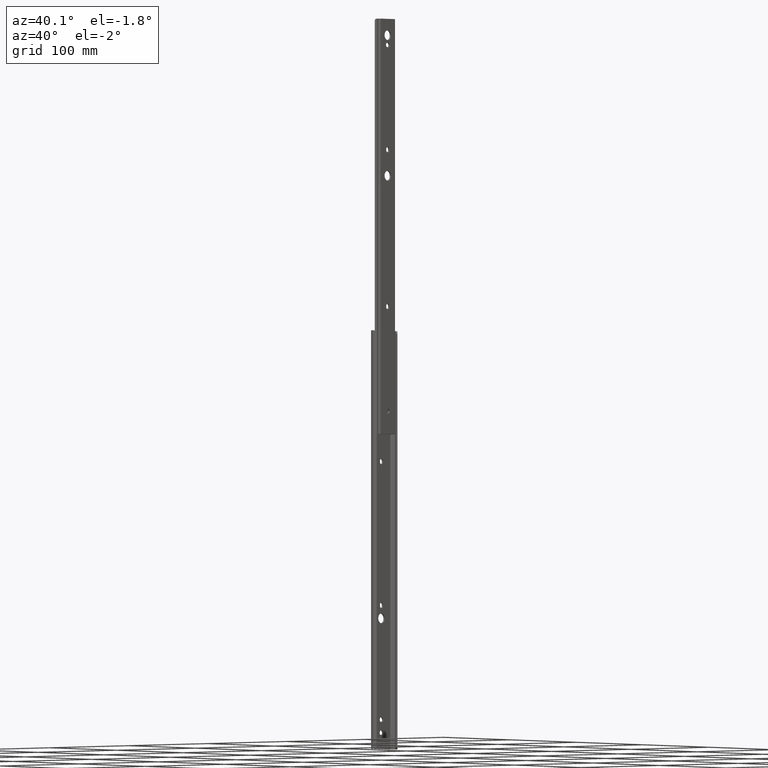
[diagram: clean part render]
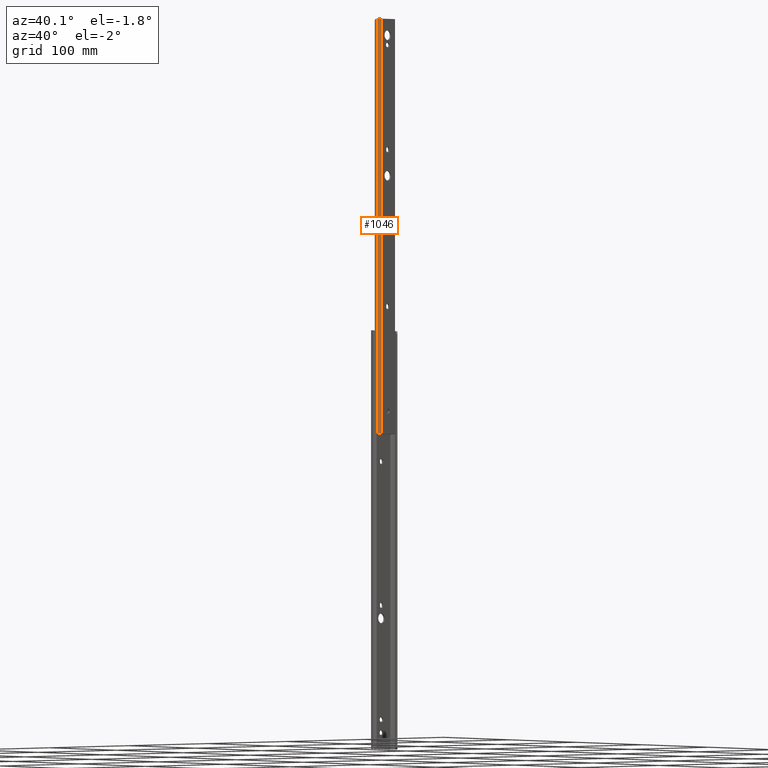
[diagram: same view with one face highlighted and labeled with its STEP entity id]
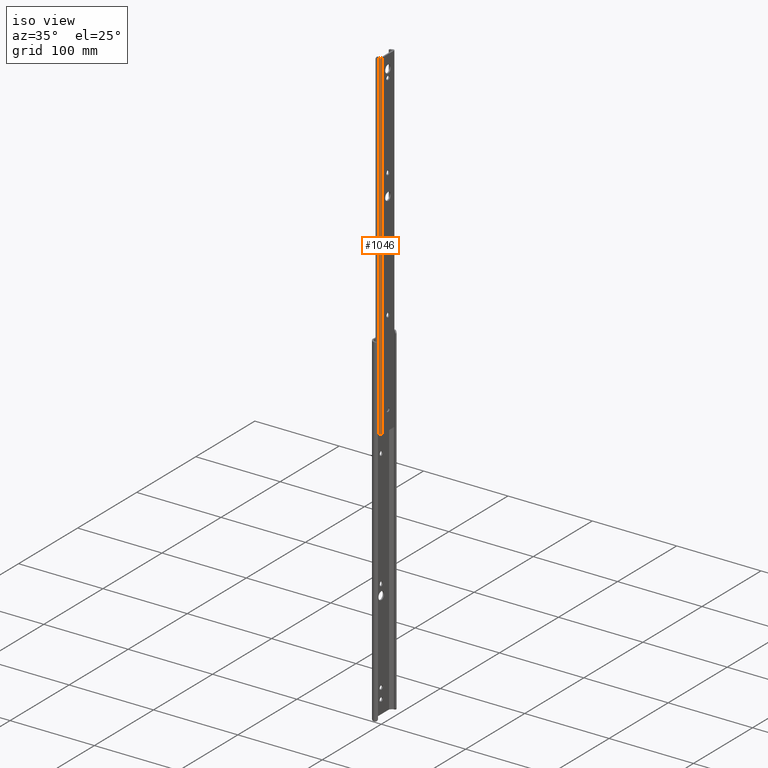
[diagram: same view with one face highlighted and labeled with its STEP entity id]
A machine part, auxiliary view. The second image highlights one B-rep face of the part: STEP entity #1046.
A second angle (iso view) of the same face is appended — the face is thin or edge-on in the first view.
In plain terms, the highlighted cylindrical surface (edge-blend (fillet) strip) has radius 1.8339 mm, axis along (0, 0, 1).
Its self-contained STEP definition (entity closure, byte-faithful):
#62 = DIRECTION ( 'NONE',  ( 0.0000000000000000000, 0.0000000000000000000, 1.000000000000000000 ) ) ;
#125 = CIRCLE ( 'NONE', #2529, 1.833948393472894844 ) ;
#186 = CARTESIAN_POINT ( 'NONE',  ( -1.833948393472780936, -10.30605160652702068, -403.4000000000000341 ) ) ;
#225 = DIRECTION ( 'NONE',  ( 0.0000000000000000000, 0.0000000000000000000, 1.000000000000000000 ) ) ;
#254 = DIRECTION ( 'NONE',  ( 1.000000000000000000, 0.0000000000000000000, 0.0000000000000000000 ) ) ;
#310 = ORIENTED_EDGE ( 'NONE', *, *, #2303, .F. ) ;
#360 = LINE ( 'NONE', #3132, #4463 ) ;
#636 = CARTESIAN_POINT ( 'NONE',  ( -2.281526521689132281, -12.08454549998411132, 0.0000000000000000000 ) ) ;
#723 = ORIENTED_EDGE ( 'NONE', *, *, #2139, .F. ) ;
#766 = AXIS2_PLACEMENT_3D ( 'NONE', #186, #1724, #254 ) ;
#788 = DIRECTION ( 'NONE',  ( 1.000000000000000000, 0.0000000000000000000, 0.0000000000000000000 ) ) ;
#808 = ORIENTED_EDGE ( 'NONE', *, *, #4052, .T. ) ;
#943 = VECTOR ( 'NONE', #225, 1000.000000000000000 ) ;
#1046 = ADVANCED_FACE ( 'NONE', ( #2097 ), #2952, .T. ) ;
#1127 = CARTESIAN_POINT ( 'NONE',  ( -2.281526521689132281, -12.08454549998411132, -403.4000000000000341 ) ) ;
#1131 = VERTEX_POINT ( 'NONE', #1127 ) ;
#1189 = CIRCLE ( 'NONE', #3995, 1.833948393472894844 ) ;
#1319 = DIRECTION ( 'NONE',  ( 1.000000000000000000, 0.0000000000000000000, 0.0000000000000000000 ) ) ;
#1363 = DIRECTION ( 'NONE',  ( 0.0000000000000000000, 0.0000000000000000000, 1.000000000000000000 ) ) ;
#1724 = DIRECTION ( 'NONE',  ( 0.0000000000000000000, 0.0000000000000000000, 1.000000000000000000 ) ) ;
#2084 = VERTEX_POINT ( 'NONE', #4015 ) ;
#2097 = FACE_OUTER_BOUND ( 'NONE', #4555, .T. ) ;
#2139 = EDGE_CURVE ( 'NONE', #2211, #2084, #125, .T. ) ;
#2211 = VERTEX_POINT ( 'NONE', #636 ) ;
#2303 = EDGE_CURVE ( 'NONE', #1131, #2211, #360, .T. ) ;
#2498 = CARTESIAN_POINT ( 'NONE',  ( -1.833948393472780936, -10.30605160652702068, 0.0000000000000000000 ) ) ;
#2529 = AXIS2_PLACEMENT_3D ( 'NONE', #2498, #1363, #1319 ) ;
#2564 = CARTESIAN_POINT ( 'NONE',  ( 1.137000000000000103E-13, -10.30605160652702068, -403.4000000000000341 ) ) ;
#2586 = LINE ( 'NONE', #4506, #943 ) ;
#2731 = VERTEX_POINT ( 'NONE', #2564 ) ;
#2952 = CYLINDRICAL_SURFACE ( 'NONE', #766, 1.833948393472894844 ) ;
#3036 = ORIENTED_EDGE ( 'NONE', *, *, #3565, .T. ) ;
#3074 = DIRECTION ( 'NONE',  ( 0.0000000000000000000, 0.0000000000000000000, 1.000000000000000000 ) ) ;
#3132 = CARTESIAN_POINT ( 'NONE',  ( -2.281526521689132281, -12.08454549998411132, -403.4000000000000341 ) ) ;
#3565 = EDGE_CURVE ( 'NONE', #1131, #2731, #1189, .T. ) ;
#3995 = AXIS2_PLACEMENT_3D ( 'NONE', #4562, #3074, #788 ) ;
#4015 = CARTESIAN_POINT ( 'NONE',  ( 1.137000000000000103E-13, -10.30605160652702068, 0.0000000000000000000 ) ) ;
#4052 = EDGE_CURVE ( 'NONE', #2731, #2084, #2586, .T. ) ;
#4463 = VECTOR ( 'NONE', #62, 1000.000000000000000 ) ;
#4506 = CARTESIAN_POINT ( 'NONE',  ( 1.137000000000000103E-13, -10.30605160652702068, -403.4000000000000341 ) ) ;
#4555 = EDGE_LOOP ( 'NONE', ( #723, #310, #3036, #808 ) ) ;
#4562 = CARTESIAN_POINT ( 'NONE',  ( -1.833948393472780936, -10.30605160652702068, -403.4000000000000341 ) ) ;